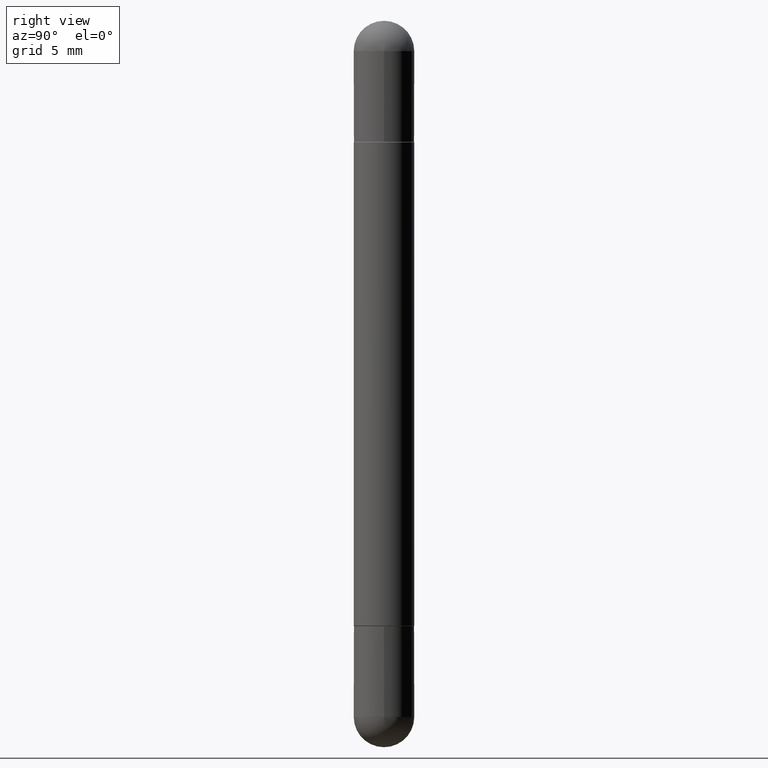
[diagram: clean part render]
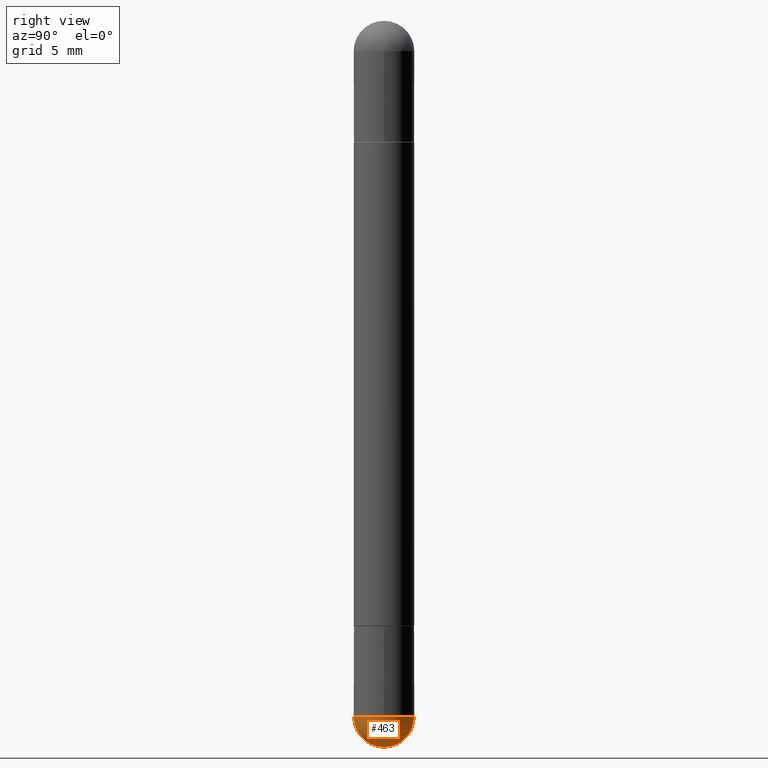
[diagram: same view with one face highlighted and labeled with its STEP entity id]
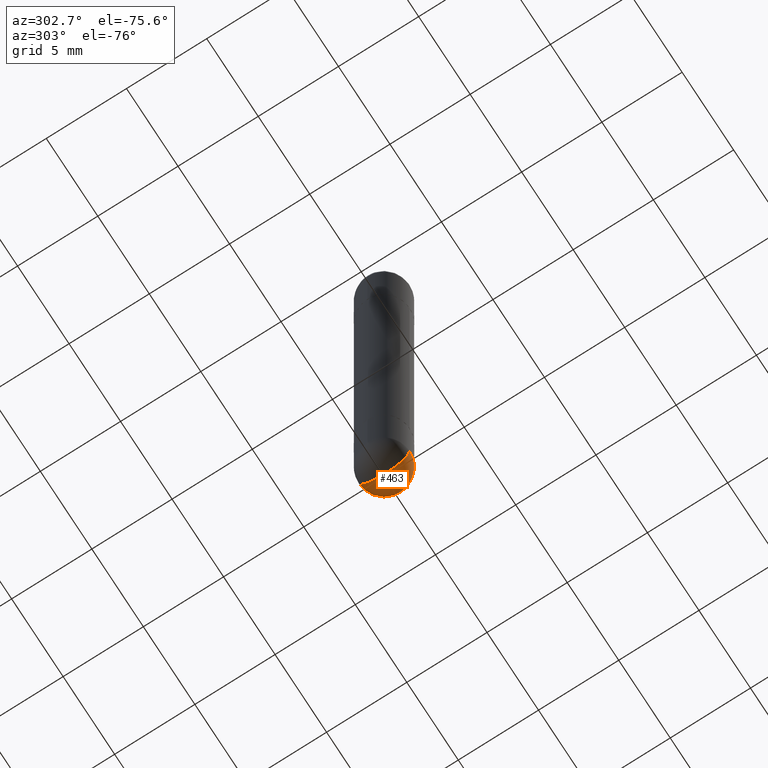
[diagram: same view with one face highlighted and labeled with its STEP entity id]
A machine part, right view. The second image highlights one B-rep face of the part: STEP entity #463.
A second angle (auxiliary view) of the same face is appended — the face is thin or edge-on in the first view.
In plain terms, the highlighted spherical surface has radius 1.5875 mm.
Its self-contained STEP definition (entity closure, byte-faithful):
#9 = EDGE_LOOP ( 'NONE', ( #450, #21, #252, #15 ) ) ;
#15 = ORIENTED_EDGE ( 'NONE', *, *, #193, .F. ) ;
#21 = ORIENTED_EDGE ( 'NONE', *, *, #299, .T. ) ;
#33 = VERTEX_POINT ( 'NONE', #168 ) ;
#36 = DIRECTION ( 'NONE',  ( -2.445468806185136597E-29, 3.491481338843145583E-15, 1.000000000000000000 ) ) ;
#45 = DIRECTION ( 'NONE',  ( -2.445468806185136597E-29, 3.491481338843145583E-15, 1.000000000000000000 ) ) ;
#123 = CIRCLE ( 'NONE', #676, 0.06250000000000022204 ) ;
#151 = VERTEX_POINT ( 'NONE', #498 ) ;
#168 = CARTESIAN_POINT ( 'NONE',  ( 4.364351673554259849E-16, 0.06249999999999485828, -1.437500000000000444 ) ) ;
#177 = CARTESIAN_POINT ( 'NONE',  ( 0.06250000000000001388, -5.128113216425869076E-15, -1.437500000000000222 ) ) ;
#193 = EDGE_CURVE ( 'NONE', #366, #794, #434, .T. ) ;
#194 = DIRECTION ( 'NONE',  ( 6.982962677686266711E-15, 1.000000000000000000, 0.000000000000000000 ) ) ;
#196 = CIRCLE ( 'NONE', #236, 0.06250000000000001388 ) ;
#236 = AXIS2_PLACEMENT_3D ( 'NONE', #529, #36, #342 ) ;
#237 = CARTESIAN_POINT ( 'NONE',  ( 3.184241630977248732E-29, -5.493186792727072638E-15, -1.437500000000000222 ) ) ;
#238 = DIRECTION ( 'NONE',  ( 1.000000000000000000, -6.982962677686265922E-15, 4.883557194083112340E-29 ) ) ;
#252 = ORIENTED_EDGE ( 'NONE', *, *, #536, .F. ) ;
#299 = EDGE_CURVE ( 'NONE', #151, #33, #123, .T. ) ;
#342 = DIRECTION ( 'NONE',  ( 1.000000000000000000, -6.982962677686261189E-15, 0.000000000000000000 ) ) ;
#359 = AXIS2_PLACEMENT_3D ( 'NONE', #237, #672, #737 ) ;
#366 = VERTEX_POINT ( 'NONE', #572 ) ;
#376 = CARTESIAN_POINT ( 'NONE',  ( 3.184241630977248732E-29, -5.493186792727072638E-15, -1.437500000000000222 ) ) ;
#420 = CARTESIAN_POINT ( 'NONE',  ( 3.184241630977248732E-29, -5.493186792727072638E-15, -1.437500000000000222 ) ) ;
#434 = CIRCLE ( 'NONE', #600, 0.06250000000000001388 ) ;
#441 = SPHERICAL_SURFACE ( 'NONE', #540, 0.06250000000000022204 ) ;
#450 = ORIENTED_EDGE ( 'NONE', *, *, #705, .F. ) ;
#463 = ADVANCED_FACE ( 'NONE', ( #765 ), #441, .T. ) ;
#483 = CARTESIAN_POINT ( 'NONE',  ( 3.515361408891134418E-29, -5.019004424587023131E-15, -1.437500000000000222 ) ) ;
#498 = CARTESIAN_POINT ( 'NONE',  ( 3.339755826017505569E-29, -5.707577355157435366E-15, -1.500000000000000444 ) ) ;
#529 = CARTESIAN_POINT ( 'NONE',  ( 3.515361408891134418E-29, -5.019004424587023131E-15, -1.437500000000000222 ) ) ;
#536 = EDGE_CURVE ( 'NONE', #794, #33, #196, .T. ) ;
#540 = AXIS2_PLACEMENT_3D ( 'NONE', #376, #718, #662 ) ;
#572 = CARTESIAN_POINT ( 'NONE',  ( -4.440892098500298784E-16, -0.06250000000000537070, -1.437500000000000000 ) ) ;
#600 = AXIS2_PLACEMENT_3D ( 'NONE', #483, #45, #674 ) ;
#662 = DIRECTION ( 'NONE',  ( 6.982962677686266711E-15, 1.000000000000000000, -4.370956789862805372E-15 ) ) ;
#672 = DIRECTION ( 'NONE',  ( -1.000000000000000000, 7.105427357601001070E-15, -4.926315508542082329E-29 ) ) ;
#674 = DIRECTION ( 'NONE',  ( 1.000000000000000000, -6.982962677686261189E-15, 0.000000000000000000 ) ) ;
#676 = AXIS2_PLACEMENT_3D ( 'NONE', #420, #238, #194 ) ;
#705 = EDGE_CURVE ( 'NONE', #151, #366, #815, .T. ) ;
#718 = DIRECTION ( 'NONE',  ( -1.000000000000000000, 6.982962677686266711E-15, -4.883557194083112901E-29 ) ) ;
#737 = DIRECTION ( 'NONE',  ( -7.105427357601000281E-15, -1.000000000000000000, 0.000000000000000000 ) ) ;
#765 = FACE_OUTER_BOUND ( 'NONE', #9, .T. ) ;
#794 = VERTEX_POINT ( 'NONE', #177 ) ;
#815 = CIRCLE ( 'NONE', #359, 0.06250000000000022204 ) ;